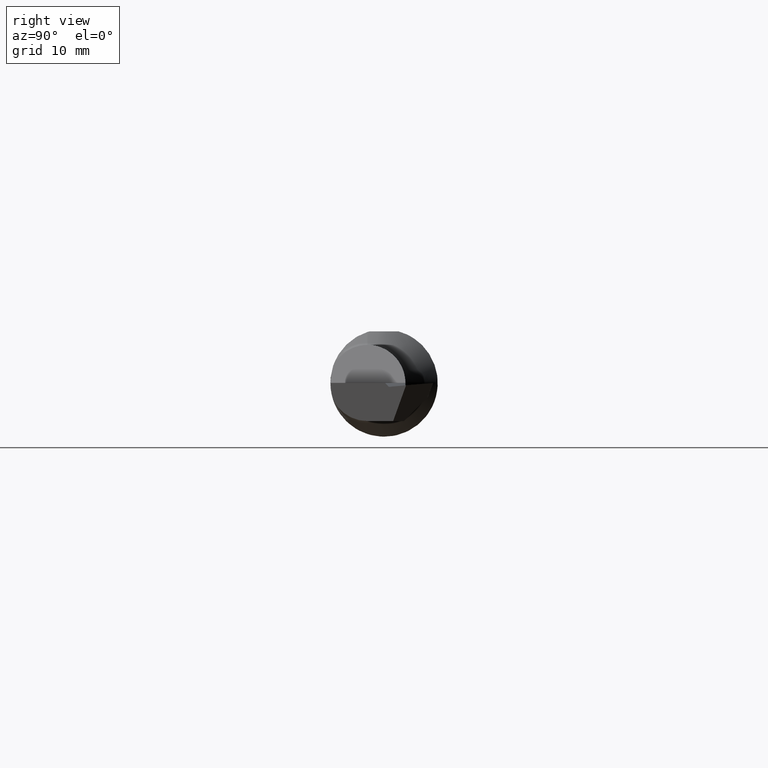
[diagram: clean part render]
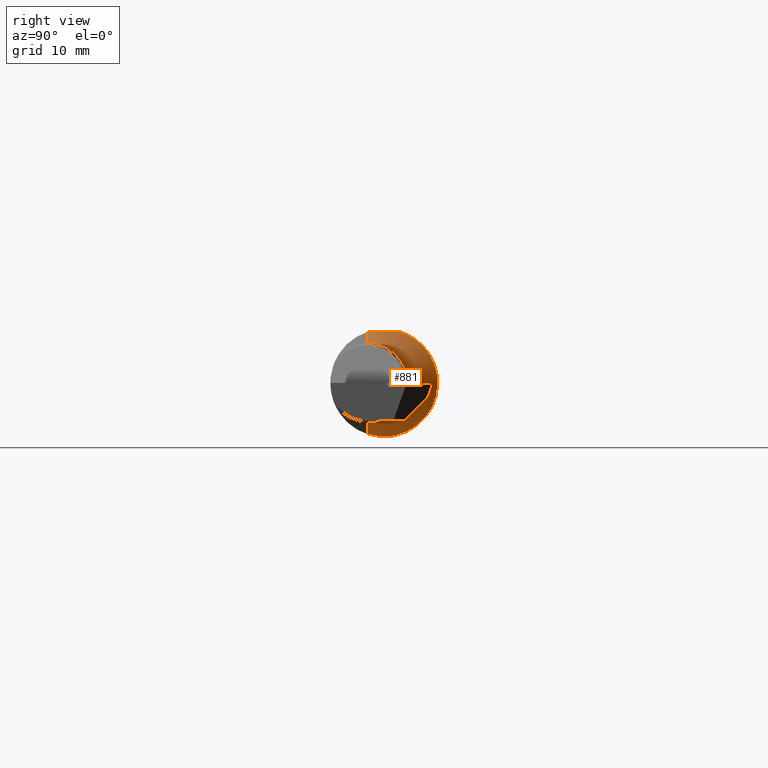
[diagram: same view with one face highlighted and labeled with its STEP entity id]
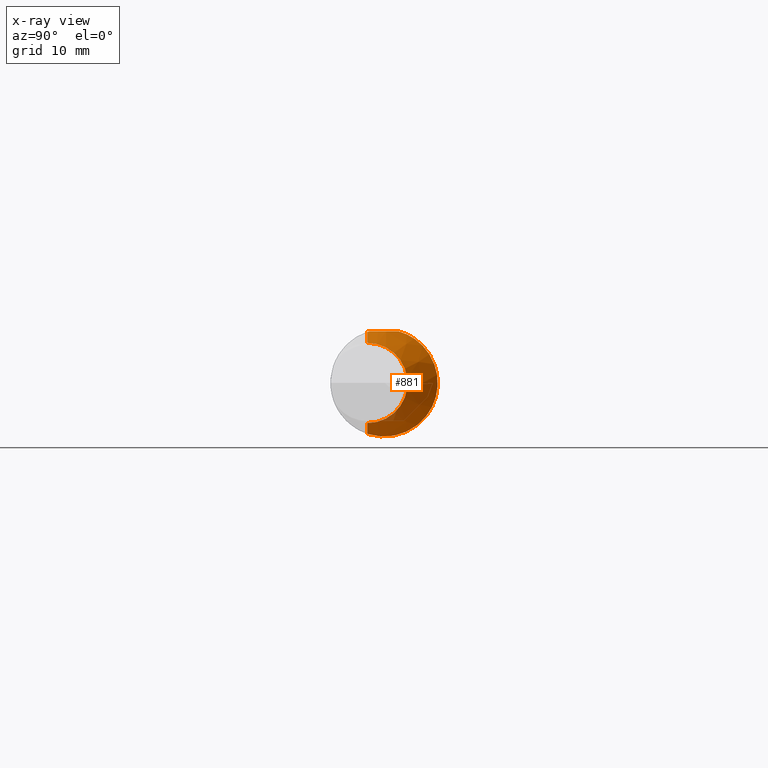
[diagram: x-ray of the same camera — body ghosted, the highlighted face saturated]
A machine part, right view. The second image highlights one B-rep face of the part: STEP entity #881.
The next image is the same camera in x-ray: the body ghosted, the highlighted face saturated — about 21% of this face is hidden behind the body in this view.
In plain terms, the highlighted conical surface has half-angle 45 deg.
Its self-contained STEP definition (entity closure, byte-faithful):
#34 = CARTESIAN_POINT ( 'NONE',  ( 1.556401947506067307, 0.1100286960033596273, -0.1517643969169448492 ) ) ;
#51 = CARTESIAN_POINT ( 'NONE',  ( 1.575940143936352289, 0.03734480488786581787, -0.1840042851911080080 ) ) ;
#57 = ORIENTED_EDGE ( 'NONE', *, *, #150, .F. ) ;
#58 = CARTESIAN_POINT ( 'NONE',  ( 1.586382994110499212, 0.001209398411742338125, -0.1877358743806105124 ) ) ;
#69 = CARTESIAN_POINT ( 'NONE',  ( 1.540172451185788161, 0.1753186121875665027, 0.06724932333031378995 ) ) ;
#70 = CARTESIAN_POINT ( 'NONE',  ( 1.604144082012933792, -0.05583534595055380384, 0.1788559179870659044 ) ) ;
#84 = VECTOR ( 'NONE', #188, 39.37007874015748143 ) ;
#85 = AXIS2_PLACEMENT_3D ( 'NONE', #846, #257, #518 ) ;
#88 = FACE_OUTER_BOUND ( 'NONE', #587, .T. ) ;
#107 = CARTESIAN_POINT ( 'NONE',  ( 1.602489247483494861, -0.05073361804563106953, 0.1803500000000000381 ) ) ;
#127 = CARTESIAN_POINT ( 'NONE',  ( 1.642677669529663653, -0.05834999999999981868, 0.000000000000000000 ) ) ;
#136 = CARTESIAN_POINT ( 'NONE',  ( 1.579350153915703547, 0.02533118765943560141, -0.1860229881109675409 ) ) ;
#146 = CARTESIAN_POINT ( 'NONE',  ( 1.550080258543535372, 0.1348995831369800835, 0.1306165108605437941 ) ) ;
#150 = EDGE_CURVE ( 'NONE', #948, #527, #936, .T. ) ;
#155 = CARTESIAN_POINT ( 'NONE',  ( 1.537801414367355735, 0.1852400666705823484, 0.03079028734493004585 ) ) ;
#157 = CARTESIAN_POINT ( 'NONE',  ( 1.642677669529663653, -0.05834999999999979092, -0.1403223304703363483 ) ) ;
#162 = CARTESIAN_POINT ( 'NONE',  ( 1.602489247483494861, -0.05073361804563106953, 0.1803500000000000381 ) ) ;
#188 = DIRECTION ( 'NONE',  ( -0.7071067811865516806, 0.000000000000000000, 0.7071067811865434649 ) ) ;
#202 = CARTESIAN_POINT ( 'NONE',  ( 1.552626747636566718, 0.1247708322425330058, -0.1403109275308249970 ) ) ;
#207 = CARTESIAN_POINT ( 'NONE',  ( 1.537709081643609199, 0.1856286585800343558, -0.02610982525124901088 ) ) ;
#223 = CARTESIAN_POINT ( 'NONE',  ( 1.537216210840755659, 0.1877021456528152055, 0.005461557674737466984 ) ) ;
#235 = AXIS2_PLACEMENT_3D ( 'NONE', #127, #793, #1004 ) ;
#236 = CARTESIAN_POINT ( 'NONE',  ( 1.449999999999997957, -0.05834999999999977705, -0.3329999999999999072 ) ) ;
#241 = CARTESIAN_POINT ( 'NONE',  ( 1.565888065801315898, 0.07390163537251719095, 0.1726011362085436152 ) ) ;
#257 = DIRECTION ( 'NONE',  ( -1.000000000000000000, -0.000000000000000000, -0.000000000000000000 ) ) ;
#277 = CARTESIAN_POINT ( 'NONE',  ( 1.587572761939021415, 0.01862349438791070788, 0.1803500000000000103 ) ) ;
#281 = CARTESIAN_POINT ( 'NONE',  ( 1.597483243306722311, -0.03515109766243801337, -0.1844245065291032493 ) ) ;
#286 = CARTESIAN_POINT ( 'NONE',  ( 1.538563873827742734, 0.1820409455122642406, -0.04473493752744744922 ) ) ;
#356 = VECTOR ( 'NONE', #1066, 39.37007874015748143 ) ;
#363 = CARTESIAN_POINT ( 'NONE',  ( 1.580428056801812309, 0.03488693378837397219, 0.1803500000000000103 ) ) ;
#368 = CARTESIAN_POINT ( 'NONE',  ( 1.544523128465643547, 0.1573629312742697017, -0.1024417037855123169 ) ) ;
#375 = CARTESIAN_POINT ( 'NONE',  ( 1.601217303120553437, -0.04690544817629504343, -0.1817826968794463982 ) ) ;
#381 = CARTESIAN_POINT ( 'NONE',  ( 1.597842309812444128, -0.01555456189894666164, 0.1803500000000000381 ) ) ;
#387 = EDGE_CURVE ( 'NONE', #948, #508, #618, .T. ) ;
#388 = CARTESIAN_POINT ( 'NONE',  ( 1.541376529822215957, 0.1703085496625235118, 0.07907260733930798757 ) ) ;
#400 = LINE ( 'NONE', #236, #356 ) ;
#401 = ORIENTED_EDGE ( 'NONE', *, *, #422, .T. ) ;
#409 = CARTESIAN_POINT ( 'NONE',  ( 1.568968547943675240, 0.06250301213542802659, 0.1770391935437745090 ) ) ;
#416 = B_SPLINE_CURVE_WITH_KNOTS ( 'NONE', 3,
 ( #162, #492, #70, #831 ),
 .UNSPECIFIED., .F., .F.,
 ( 4, 4 ),
 ( 7.627425471845128801E-07, 0.0002102370372012421680 ),
 .UNSPECIFIED. ) ;
#422 = EDGE_CURVE ( 'NONE', #1074, #527, #416, .T. ) ;
#438 = VERTEX_POINT ( 'NONE', #735 ) ;
#443 = CARTESIAN_POINT ( 'NONE',  ( 1.566243151538837974, 0.07258185416455241457, -0.1731530736261578940 ) ) ;
#448 = CARTESIAN_POINT ( 'NONE',  ( 1.561874062265818930, 0.08903011435619233305, -0.1649581271952395289 ) ) ;
#453 = CARTESIAN_POINT ( 'NONE',  ( 1.602116104292441445, -0.04189000192750386847, 0.1803500000000000381 ) ) ;
#467 = CARTESIAN_POINT ( 'NONE',  ( 1.569337034764407557, 0.06115010668878911870, -0.1775186634490950599 ) ) ;
#479 = CARTESIAN_POINT ( 'NONE',  ( 1.572226761124839500, 0.05073361804563112504, 0.1803500000000000381 ) ) ;
#486 = CARTESIAN_POINT ( 'NONE',  ( 1.604968261256594531, -0.05834999999999980480, 0.1780317387434050824 ) ) ;
#492 = CARTESIAN_POINT ( 'NONE',  ( 1.603317762031590155, -0.05329669918612119084, 0.1796289887463178303 ) ) ;
#508 = VERTEX_POINT ( 'NONE', #157 ) ;
#515 = EDGE_CURVE ( 'NONE', #508, #981, #400, .T. ) ;
#518 = DIRECTION ( 'NONE',  ( 0.000000000000000000, 0.000000000000000000, 1.000000000000000000 ) ) ;
#527 = VERTEX_POINT ( 'NONE', #486 ) ;
#537 = CARTESIAN_POINT ( 'NONE',  ( 1.550366864174358428, 0.1337561031483593121, -0.1317747899903142506 ) ) ;
#542 = CARTESIAN_POINT ( 'NONE',  ( 1.540339301653355530, 0.1746239680236502667, -0.06904456622799000354 ) ) ;
#555 = CARTESIAN_POINT ( 'NONE',  ( 1.601092997493398506, -0.03308665011114107768, 0.1803500000000000658 ) ) ;
#583 = CARTESIAN_POINT ( 'NONE',  ( 1.560048160486880331, 0.09592332149754141668, 0.1614042140840567241 ) ) ;
#587 = EDGE_LOOP ( 'NONE', ( #811, #892, #641, #867, #401, #57 ) ) ;
#618 = CIRCLE ( 'NONE', #235, 0.1403223304703363483 ) ;
#619 = CONICAL_SURFACE ( 'NONE', #85, 0.3329999999999999072, 0.7853981633974425058 ) ;
#623 = CARTESIAN_POINT ( 'NONE',  ( 1.604968261256594531, -0.05834999999999977011, -0.1780317387434050269 ) ) ;
#637 = B_SPLINE_CURVE_WITH_KNOTS ( 'NONE', 3,
 ( #714, #363, #277, #966, #381, #555, #453, #1052 ),
 .UNSPECIFIED., .F., .F.,
 ( 4, 2, 2, 4 ),
 ( 0.004145903190273306053, 0.005498764589092038774, 0.006175195288501408170, 0.006851625987910778433 ),
 .UNSPECIFIED. ) ;
#641 = ORIENTED_EDGE ( 'NONE', *, *, #745, .T. ) ;
#670 = CARTESIAN_POINT ( 'NONE',  ( 1.642677669529663653, -0.05834999999999981868, 0.1403223304703363483 ) ) ;
#680 = EDGE_CURVE ( 'NONE', #438, #1074, #637, .T. ) ;
#686 = B_SPLINE_CURVE_WITH_KNOTS ( 'NONE', 3,
 ( #623, #375, #281, #879, #58, #136, #51, #467, #443, #448, #949, #700, #34, #202, #537, #869, #368, #703, #542, #1041, #286, #961, #207, #830, #223, #155, #998, #69, #388, #899, #748, #146, #1065, #813, #583, #241, #409, #479 ),
 .UNSPECIFIED., .F., .F.,
 ( 4, 2, 2, 2, 2, 2, 2, 2, 2, 2, 2, 2, 2, 2, 2, 2, 2, 2, 4 ),
 ( 0.01237582103972411848, 0.01333573452915168787, 0.01429564801857925900, 0.01525556150800682839, 0.01621547499743439952, 0.01669543174214818335, 0.01717538848686197064, 0.01813530197628954524, 0.01909521546571711983, 0.02005512895514469443, 0.02053508569985848173, 0.02101504244457226556, 0.02197495593399984015, 0.02293486942342741475, 0.02389478291285498934, 0.02485469640228256394, 0.02581460989171013853, 0.02677452338113771313, 0.02773443687056528772 ),
 .UNSPECIFIED. ) ;
#700 = CARTESIAN_POINT ( 'NONE',  ( 1.557730347949919381, 0.1048826378083086430, -0.1553640687897693828 ) ) ;
#703 = CARTESIAN_POINT ( 'NONE',  ( 1.541543747921856111, 0.1696157454200302173, -0.08054746252562335063 ) ) ;
#714 = CARTESIAN_POINT ( 'NONE',  ( 1.572226761124839500, 0.05073361804563112504, 0.1803500000000000381 ) ) ;
#735 = CARTESIAN_POINT ( 'NONE',  ( 1.572226761124839500, 0.05073361804563112504, 0.1803500000000000381 ) ) ;
#745 = EDGE_CURVE ( 'NONE', #981, #438, #686, .T. ) ;
#748 = CARTESIAN_POINT ( 'NONE',  ( 1.546040650611814282, 0.1511645985810750326, 0.1113904599852968691 ) ) ;
#770 = CARTESIAN_POINT ( 'NONE',  ( 1.449999999999997957, -0.05834999999999981868, 0.3329999999999999072 ) ) ;
#793 = DIRECTION ( 'NONE',  ( -1.000000000000000000, -0.000000000000000000, -0.000000000000000000 ) ) ;
#811 = ORIENTED_EDGE ( 'NONE', *, *, #387, .T. ) ;
#813 = CARTESIAN_POINT ( 'NONE',  ( 1.557307602494414356, 0.1064794760884438252, 0.1546452818744088187 ) ) ;
#830 = CARTESIAN_POINT ( 'NONE',  ( 1.537233112653664913, 0.1876308245808173403, -0.007313932636928896329 ) ) ;
#831 = CARTESIAN_POINT ( 'NONE',  ( 1.604968261256594531, -0.05834999999999980480, 0.1780317387434050824 ) ) ;
#846 = CARTESIAN_POINT ( 'NONE',  ( 1.449999999999997957, -0.05834999999999981868, 0.000000000000000000 ) ) ;
#867 = ORIENTED_EDGE ( 'NONE', *, *, #680, .T. ) ;
#869 = CARTESIAN_POINT ( 'NONE',  ( 1.546320311736755215, 0.1500294446420622763, -0.1129002043701441416 ) ) ;
#879 = CARTESIAN_POINT ( 'NONE',  ( 1.590038752404291822, -0.01100734393750732107, -0.1874215480002737466 ) ) ;
#881 = ADVANCED_FACE ( 'NONE', ( #88 ), #619, .T. ) ;
#892 = ORIENTED_EDGE ( 'NONE', *, *, #515, .T. ) ;
#899 = CARTESIAN_POINT ( 'NONE',  ( 1.544308147217179572, 0.1582425620373411057, 0.1010780435082065110 ) ) ;
#936 = LINE ( 'NONE', #770, #84 ) ;
#943 = CARTESIAN_POINT ( 'NONE',  ( 1.604968261256594531, -0.05834999999999977011, -0.1780317387434050269 ) ) ;
#948 = VERTEX_POINT ( 'NONE', #670 ) ;
#949 = CARTESIAN_POINT ( 'NONE',  ( 1.560463333522016383, 0.09439550663752122039, -0.1619501463759349114 ) ) ;
#961 = CARTESIAN_POINT ( 'NONE',  ( 1.537942788268092498, 0.1846460632819054148, -0.03234117797913937942 ) ) ;
#966 = CARTESIAN_POINT ( 'NONE',  ( 1.595608198981767201, -0.006829386849603777745, 0.1803500000000000103 ) ) ;
#981 = VERTEX_POINT ( 'NONE', #943 ) ;
#998 = CARTESIAN_POINT ( 'NONE',  ( 1.538393214463352310, 0.1827501551820268078, 0.04314473373083428653 ) ) ;
#1004 = DIRECTION ( 'NONE',  ( 0.000000000000000000, 0.000000000000000000, 1.000000000000000000 ) ) ;
#1041 = CARTESIAN_POINT ( 'NONE',  ( 1.538954375347812986, 0.1804053881614881283, -0.05093214486733151081 ) ) ;
#1052 = CARTESIAN_POINT ( 'NONE',  ( 1.602489247483494861, -0.05073361804563106953, 0.1803500000000000381 ) ) ;
#1065 = CARTESIAN_POINT ( 'NONE',  ( 1.552344364721590431, 0.1258879061987051573, 0.1393028251938591422 ) ) ;
#1066 = DIRECTION ( 'NONE',  ( -0.7071067811865516806, 8.659560562354883554E-17, -0.7071067811865434649 ) ) ;
#1074 = VERTEX_POINT ( 'NONE', #107 ) ;